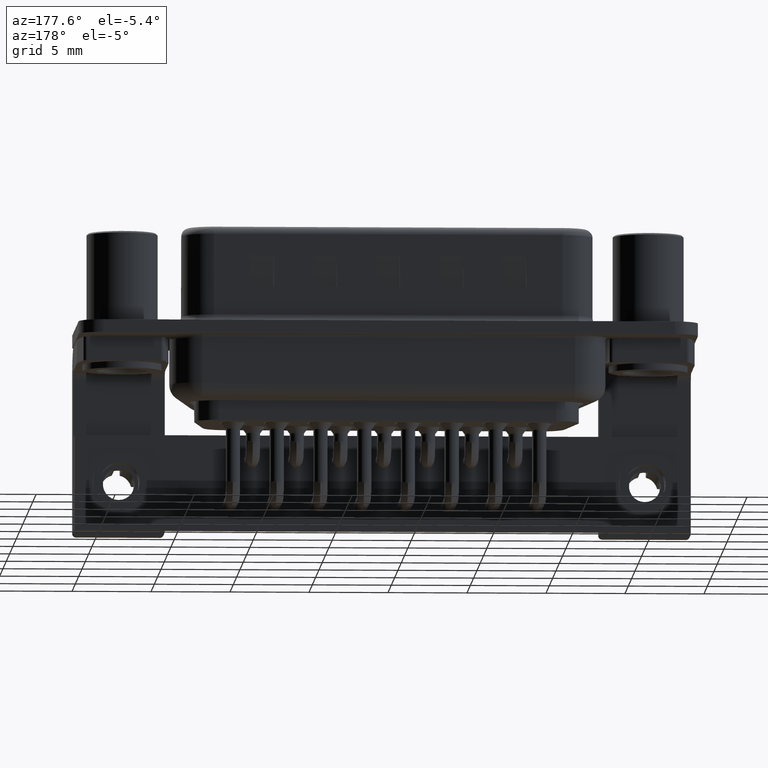
[diagram: clean part render]
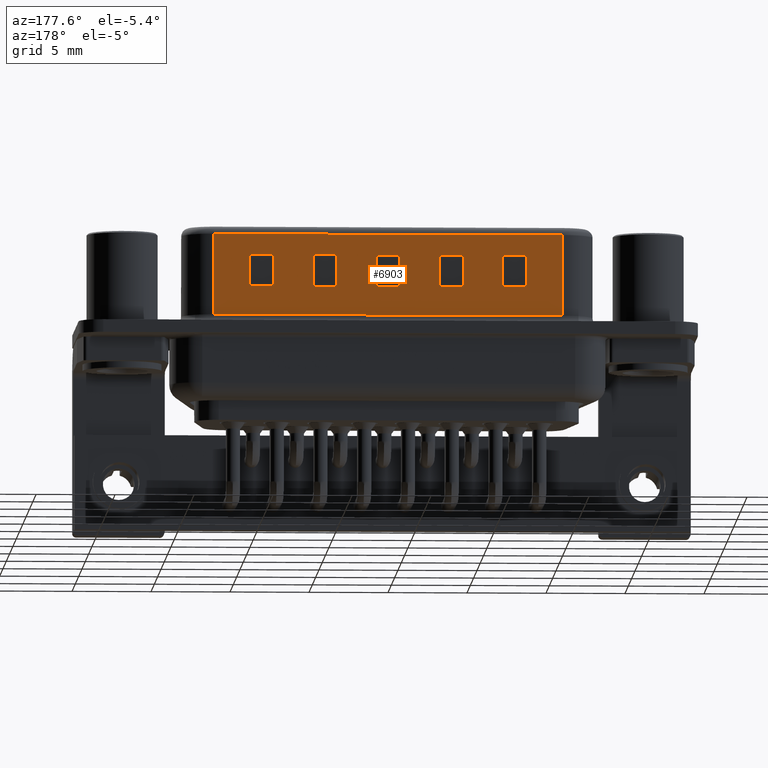
[diagram: same view with one face highlighted and labeled with its STEP entity id]
A machine part, auxiliary view. The second image highlights one B-rep face of the part: STEP entity #6903.
In plain terms, the highlighted planar face has unit normal (0, -1, 0).
Its self-contained STEP definition (entity closure, byte-faithful):
#479 = CARTESIAN_POINT ( 'NONE',  ( 15.89999999999999300, 4.549999999999994500, 4.704948974278316600 ) ) ;
#500 = VERTEX_POINT ( 'NONE', #22200 ) ;
#695 = FACE_BOUND ( 'NONE', #1959, .T. ) ;
#705 = LINE ( 'NONE', #23571, #11294 ) ;
#754 = CARTESIAN_POINT ( 'NONE',  ( 9.399999999999991500, 4.549999999999994500, 4.704948974278316600 ) ) ;
#837 = VERTEX_POINT ( 'NONE', #5879 ) ;
#983 = LINE ( 'NONE', #5433, #22508 ) ;
#1176 = CARTESIAN_POINT ( 'NONE',  ( 11.89999999999999300, 4.549999999999994500, 4.704948974278316600 ) ) ;
#1178 = CARTESIAN_POINT ( 'NONE',  ( 7.899999999999994100, 4.549999999999994500, 4.704948974278316600 ) ) ;
#1896 = DIRECTION ( 'NONE',  ( 1.000000000000000000, 0.0000000000000000000, 0.0000000000000000000 ) ) ;
#1959 = EDGE_LOOP ( 'NONE', ( #12987, #8311, #11628, #9436 ) ) ;
#1988 = DIRECTION ( 'NONE',  ( -0.0000000000000000000, -0.0000000000000000000, 1.000000000000000000 ) ) ;
#2022 = VERTEX_POINT ( 'NONE', #17949 ) ;
#2131 = PLANE ( 'NONE',  #17609 ) ;
#2170 = DIRECTION ( 'NONE',  ( 1.000000000000000000, 0.0000000000000000000, 0.0000000000000000000 ) ) ;
#2227 = ORIENTED_EDGE ( 'NONE', *, *, #26034, .F. ) ;
#2306 = EDGE_CURVE ( 'NONE', #10927, #2684, #19507, .T. ) ;
#2565 = CARTESIAN_POINT ( 'NONE',  ( 25.39999999999999100, 4.549999999999994500, 4.704948974278316600 ) ) ;
#2623 = VECTOR ( 'NONE', #26297, 1000.000000000000000 ) ;
#2631 = EDGE_LOOP ( 'NONE', ( #27019, #9250, #26051, #9356 ) ) ;
#2684 = VERTEX_POINT ( 'NONE', #26476 ) ;
#2874 = CARTESIAN_POINT ( 'NONE',  ( 13.39999999999999100, 4.549999999999994500, 2.704948974278317000 ) ) ;
#2962 = EDGE_LOOP ( 'NONE', ( #13669, #7652, #2227, #11561 ) ) ;
#2973 = VECTOR ( 'NONE', #2170, 1000.000000000000000 ) ;
#3158 = EDGE_CURVE ( 'NONE', #2022, #500, #12398, .T. ) ;
#3590 = EDGE_LOOP ( 'NONE', ( #18031, #26406, #9838, #3867 ) ) ;
#3867 = ORIENTED_EDGE ( 'NONE', *, *, #18675, .F. ) ;
#4049 = CARTESIAN_POINT ( 'NONE',  ( 21.39999999999999100, 4.549999999999994500, 4.704948974278316600 ) ) ;
#4241 = DIRECTION ( 'NONE',  ( 0.0000000000000000000, -1.000000000000000000, 0.0000000000000000000 ) ) ;
#4318 = ORIENTED_EDGE ( 'NONE', *, *, #21808, .F. ) ;
#4392 = EDGE_CURVE ( 'NONE', #6069, #10927, #23636, .T. ) ;
#4577 = EDGE_LOOP ( 'NONE', ( #7646, #7175, #4318, #23573 ) ) ;
#4746 = VERTEX_POINT ( 'NONE', #5125 ) ;
#4888 = DIRECTION ( 'NONE',  ( 1.000000000000000000, 0.0000000000000000000, 0.0000000000000000000 ) ) ;
#5099 = EDGE_CURVE ( 'NONE', #12417, #2022, #25970, .T. ) ;
#5125 = CARTESIAN_POINT ( 'NONE',  ( 19.89999999999999500, 4.549999999999994500, 4.704948974278316600 ) ) ;
#5290 = CARTESIAN_POINT ( 'NONE',  ( 21.39999999999999100, 4.549999999999994500, 4.704948974278316600 ) ) ;
#5433 = CARTESIAN_POINT ( 'NONE',  ( 5.624999999999994700, 4.549999999999994500, 6.520000000000000500 ) ) ;
#5495 = DIRECTION ( 'NONE',  ( -1.000000000000000000, -0.0000000000000000000, -0.0000000000000000000 ) ) ;
#5879 = CARTESIAN_POINT ( 'NONE',  ( 25.39999999999999100, 4.549999999999994500, 2.704948974278317000 ) ) ;
#6069 = VERTEX_POINT ( 'NONE', #22074 ) ;
#6107 = DIRECTION ( 'NONE',  ( -1.000000000000000000, -0.0000000000000000000, -0.0000000000000000000 ) ) ;
#6199 = DIRECTION ( 'NONE',  ( 0.0000000000000000000, 0.0000000000000000000, -1.000000000000000000 ) ) ;
#6422 = CARTESIAN_POINT ( 'NONE',  ( 23.89999999999999500, 4.549999999999994500, 2.704948974278317000 ) ) ;
#6462 = CARTESIAN_POINT ( 'NONE',  ( 15.89999999999999300, 4.549999999999994500, 2.704948974278317000 ) ) ;
#6903 = ADVANCED_FACE ( 'NONE', ( #22229, #695, #7043, #16692, #11276, #11932 ), #2131, .F. ) ;
#7006 = VERTEX_POINT ( 'NONE', #14787 ) ;
#7043 = FACE_BOUND ( 'NONE', #26854, .T. ) ;
#7128 = LINE ( 'NONE', #1176, #17422 ) ;
#7172 = LINE ( 'NONE', #17701, #12062 ) ;
#7175 = ORIENTED_EDGE ( 'NONE', *, *, #25329, .F. ) ;
#7324 = VECTOR ( 'NONE', #10921, 1000.000000000000000 ) ;
#7347 = EDGE_CURVE ( 'NONE', #16933, #23651, #13182, .T. ) ;
#7579 = DIRECTION ( 'NONE',  ( -1.000000000000000000, -0.0000000000000000000, -0.0000000000000000000 ) ) ;
#7646 = ORIENTED_EDGE ( 'NONE', *, *, #5099, .F. ) ;
#7650 = EDGE_CURVE ( 'NONE', #9977, #837, #16982, .T. ) ;
#7652 = ORIENTED_EDGE ( 'NONE', *, *, #7650, .F. ) ;
#7657 = CARTESIAN_POINT ( 'NONE',  ( 17.39999999999999100, 4.549999999999994500, 4.704948974278316600 ) ) ;
#7732 = ORIENTED_EDGE ( 'NONE', *, *, #2306, .F. ) ;
#8254 = VECTOR ( 'NONE', #22106, 1000.000000000000000 ) ;
#8311 = ORIENTED_EDGE ( 'NONE', *, *, #15935, .F. ) ;
#8421 = CARTESIAN_POINT ( 'NONE',  ( 23.89999999999999500, 4.549999999999994500, 4.704948974278316600 ) ) ;
#8530 = DIRECTION ( 'NONE',  ( -1.000000000000000000, -0.0000000000000000000, -0.0000000000000000000 ) ) ;
#8580 = CARTESIAN_POINT ( 'NONE',  ( 7.899999999999994100, 4.549999999999994500, 4.704948974278316600 ) ) ;
#8608 = EDGE_CURVE ( 'NONE', #14494, #7006, #24820, .T. ) ;
#8759 = CARTESIAN_POINT ( 'NONE',  ( 23.89999999999999500, 4.549999999999994500, 2.704948974278317000 ) ) ;
#9052 = EDGE_CURVE ( 'NONE', #2684, #14884, #21773, .T. ) ;
#9093 = VECTOR ( 'NONE', #13551, 1000.000000000000000 ) ;
#9163 = EDGE_CURVE ( 'NONE', #4746, #26359, #19147, .T. ) ;
#9250 = ORIENTED_EDGE ( 'NONE', *, *, #14311, .T. ) ;
#9356 = ORIENTED_EDGE ( 'NONE', *, *, #8608, .T. ) ;
#9436 = ORIENTED_EDGE ( 'NONE', *, *, #7347, .F. ) ;
#9567 = CARTESIAN_POINT ( 'NONE',  ( 19.89999999999999500, 4.549999999999994500, 2.704948974278317000 ) ) ;
#9838 = ORIENTED_EDGE ( 'NONE', *, *, #9163, .F. ) ;
#9977 = VERTEX_POINT ( 'NONE', #20267 ) ;
#10271 = VECTOR ( 'NONE', #6107, 1000.000000000000000 ) ;
#10343 = LINE ( 'NONE', #6422, #20600 ) ;
#10671 = VECTOR ( 'NONE', #23541, 1000.000000000000000 ) ;
#10921 = DIRECTION ( 'NONE',  ( 0.0000000000000000000, 0.0000000000000000000, -1.000000000000000000 ) ) ;
#10927 = VERTEX_POINT ( 'NONE', #11024 ) ;
#11024 = CARTESIAN_POINT ( 'NONE',  ( 7.899999999999994100, 4.549999999999994500, 4.704948974278316600 ) ) ;
#11276 = FACE_BOUND ( 'NONE', #4577, .T. ) ;
#11294 = VECTOR ( 'NONE', #4888, 1000.000000000000000 ) ;
#11561 = ORIENTED_EDGE ( 'NONE', *, *, #13330, .F. ) ;
#11628 = ORIENTED_EDGE ( 'NONE', *, *, #16003, .F. ) ;
#11744 = CARTESIAN_POINT ( 'NONE',  ( 19.89999999999999500, 4.549999999999994500, 4.704948974278316600 ) ) ;
#11748 = VECTOR ( 'NONE', #14141, 1000.000000000000000 ) ;
#11932 = FACE_OUTER_BOUND ( 'NONE', #2631, .T. ) ;
#12004 = LINE ( 'NONE', #7657, #17408 ) ;
#12008 = VECTOR ( 'NONE', #1988, 1000.000000000000000 ) ;
#12062 = VECTOR ( 'NONE', #21795, 1000.000000000000000 ) ;
#12114 = CARTESIAN_POINT ( 'NONE',  ( 11.89999999999999300, 4.549999999999994500, 4.704948974278316600 ) ) ;
#12307 = CARTESIAN_POINT ( 'NONE',  ( 27.67499999999999400, 4.549999999999993600, 0.8999999999999998000 ) ) ;
#12398 = LINE ( 'NONE', #479, #11748 ) ;
#12417 = VERTEX_POINT ( 'NONE', #25925 ) ;
#12448 = CARTESIAN_POINT ( 'NONE',  ( 5.624999999999994700, 4.549999999999994500, 6.020000000000001400 ) ) ;
#12502 = ORIENTED_EDGE ( 'NONE', *, *, #21314, .F. ) ;
#12740 = VECTOR ( 'NONE', #26885, 1000.000000000000000 ) ;
#12987 = ORIENTED_EDGE ( 'NONE', *, *, #22691, .F. ) ;
#13182 = LINE ( 'NONE', #12114, #23535 ) ;
#13323 = ORIENTED_EDGE ( 'NONE', *, *, #9052, .F. ) ;
#13330 = EDGE_CURVE ( 'NONE', #16331, #26433, #15595, .T. ) ;
#13551 = DIRECTION ( 'NONE',  ( 0.0000000000000000000, 0.0000000000000000000, -1.000000000000000000 ) ) ;
#13669 = ORIENTED_EDGE ( 'NONE', *, *, #16865, .F. ) ;
#13827 = VERTEX_POINT ( 'NONE', #14175 ) ;
#13921 = LINE ( 'NONE', #26068, #9093 ) ;
#13955 = CARTESIAN_POINT ( 'NONE',  ( 17.39999999999999100, 4.549999999999994500, 4.704948974278316600 ) ) ;
#14141 = DIRECTION ( 'NONE',  ( -0.0000000000000000000, -0.0000000000000000000, 1.000000000000000000 ) ) ;
#14175 = CARTESIAN_POINT ( 'NONE',  ( 13.39999999999999100, 4.549999999999994500, 4.704948974278316600 ) ) ;
#14311 = EDGE_CURVE ( 'NONE', #21039, #20037, #7172, .T. ) ;
#14494 = VERTEX_POINT ( 'NONE', #12307 ) ;
#14629 = CARTESIAN_POINT ( 'NONE',  ( 5.624999999999994700, 4.549999999999994500, 6.520000000000000500 ) ) ;
#14787 = CARTESIAN_POINT ( 'NONE',  ( 5.624999999999994700, 4.549999999999994500, 0.8999999999999998000 ) ) ;
#14884 = VERTEX_POINT ( 'NONE', #21886 ) ;
#15495 = EDGE_CURVE ( 'NONE', #23763, #18981, #18373, .T. ) ;
#15595 = LINE ( 'NONE', #8421, #26772 ) ;
#15626 = VECTOR ( 'NONE', #23758, 1000.000000000000000 ) ;
#15935 = EDGE_CURVE ( 'NONE', #13827, #24467, #13921, .T. ) ;
#16003 = EDGE_CURVE ( 'NONE', #23651, #13827, #7128, .T. ) ;
#16090 = LINE ( 'NONE', #17240, #10671 ) ;
#16331 = VERTEX_POINT ( 'NONE', #8759 ) ;
#16406 = VECTOR ( 'NONE', #6199, 1000.000000000000000 ) ;
#16692 = FACE_BOUND ( 'NONE', #3590, .T. ) ;
#16865 = EDGE_CURVE ( 'NONE', #837, #16331, #10343, .T. ) ;
#16878 = DIRECTION ( 'NONE',  ( -0.0000000000000000000, -0.0000000000000000000, -1.000000000000000000 ) ) ;
#16903 = EDGE_CURVE ( 'NONE', #20037, #14494, #25639, .T. ) ;
#16933 = VERTEX_POINT ( 'NONE', #18936 ) ;
#16982 = LINE ( 'NONE', #2565, #7324 ) ;
#17049 = LINE ( 'NONE', #4049, #16406 ) ;
#17240 = CARTESIAN_POINT ( 'NONE',  ( 7.899999999999994100, 4.549999999999994500, 2.704948974278317000 ) ) ;
#17408 = VECTOR ( 'NONE', #19972, 1000.000000000000000 ) ;
#17422 = VECTOR ( 'NONE', #24166, 1000.000000000000000 ) ;
#17609 = AXIS2_PLACEMENT_3D ( 'NONE', #14629, #4241, #18739 ) ;
#17701 = CARTESIAN_POINT ( 'NONE',  ( 5.624999999999994700, 4.549999999999994500, 6.020000000000001400 ) ) ;
#17851 = CARTESIAN_POINT ( 'NONE',  ( 21.39999999999999100, 4.549999999999994500, 2.704948974278317000 ) ) ;
#17949 = CARTESIAN_POINT ( 'NONE',  ( 15.89999999999999300, 4.549999999999994500, 2.704948974278317000 ) ) ;
#18031 = ORIENTED_EDGE ( 'NONE', *, *, #15495, .F. ) ;
#18336 = VECTOR ( 'NONE', #1896, 1000.000000000000000 ) ;
#18373 = LINE ( 'NONE', #19919, #22627 ) ;
#18675 = EDGE_CURVE ( 'NONE', #18981, #4746, #23738, .T. ) ;
#18739 = DIRECTION ( 'NONE',  ( 0.0000000000000000000, -0.0000000000000000000, -1.000000000000000000 ) ) ;
#18936 = CARTESIAN_POINT ( 'NONE',  ( 11.89999999999999300, 4.549999999999994500, 2.704948974278317000 ) ) ;
#18981 = VERTEX_POINT ( 'NONE', #9567 ) ;
#19147 = LINE ( 'NONE', #11744, #2623 ) ;
#19294 = VECTOR ( 'NONE', #16878, 1000.000000000000000 ) ;
#19448 = CARTESIAN_POINT ( 'NONE',  ( 27.67499999999999400, 4.549999999999993600, 6.020000000000001400 ) ) ;
#19507 = LINE ( 'NONE', #8580, #2973 ) ;
#19863 = DIRECTION ( 'NONE',  ( -0.0000000000000000000, -0.0000000000000000000, -1.000000000000000000 ) ) ;
#19919 = CARTESIAN_POINT ( 'NONE',  ( 19.89999999999999500, 4.549999999999994500, 2.704948974278317000 ) ) ;
#19972 = DIRECTION ( 'NONE',  ( 0.0000000000000000000, 0.0000000000000000000, -1.000000000000000000 ) ) ;
#19973 = CARTESIAN_POINT ( 'NONE',  ( 5.624999999999994700, 4.549999999999994500, 0.8999999999999998000 ) ) ;
#20037 = VERTEX_POINT ( 'NONE', #19448 ) ;
#20267 = CARTESIAN_POINT ( 'NONE',  ( 25.39999999999999100, 4.549999999999994500, 4.704948974278316600 ) ) ;
#20524 = CARTESIAN_POINT ( 'NONE',  ( 11.89999999999999300, 4.549999999999994500, 2.704948974278317000 ) ) ;
#20600 = VECTOR ( 'NONE', #8530, 1000.000000000000000 ) ;
#20940 = VECTOR ( 'NONE', #7579, 1000.000000000000000 ) ;
#21039 = VERTEX_POINT ( 'NONE', #12448 ) ;
#21314 = EDGE_CURVE ( 'NONE', #14884, #6069, #16090, .T. ) ;
#21537 = EDGE_CURVE ( 'NONE', #26359, #23763, #17049, .T. ) ;
#21773 = LINE ( 'NONE', #754, #15626 ) ;
#21795 = DIRECTION ( 'NONE',  ( 1.000000000000000000, -0.0000000000000000000, -0.0000000000000000000 ) ) ;
#21808 = EDGE_CURVE ( 'NONE', #500, #25280, #705, .T. ) ;
#21886 = CARTESIAN_POINT ( 'NONE',  ( 9.399999999999991500, 4.549999999999994500, 2.704948974278317000 ) ) ;
#22074 = CARTESIAN_POINT ( 'NONE',  ( 7.899999999999994100, 4.549999999999994500, 2.704948974278317000 ) ) ;
#22106 = DIRECTION ( 'NONE',  ( -1.000000000000000000, 0.0000000000000000000, 0.0000000000000000000 ) ) ;
#22200 = CARTESIAN_POINT ( 'NONE',  ( 15.89999999999999300, 4.549999999999994500, 4.704948974278316600 ) ) ;
#22229 = FACE_BOUND ( 'NONE', #2962, .T. ) ;
#22382 = DIRECTION ( 'NONE',  ( -0.0000000000000000000, -0.0000000000000000000, 1.000000000000000000 ) ) ;
#22508 = VECTOR ( 'NONE', #19863, 1000.000000000000000 ) ;
#22627 = VECTOR ( 'NONE', #5495, 1000.000000000000000 ) ;
#22691 = EDGE_CURVE ( 'NONE', #24467, #16933, #26894, .T. ) ;
#22861 = DIRECTION ( 'NONE',  ( -0.0000000000000000000, -0.0000000000000000000, 1.000000000000000000 ) ) ;
#23071 = CARTESIAN_POINT ( 'NONE',  ( 27.67499999999999400, 4.549999999999993600, 6.520000000000000500 ) ) ;
#23104 = EDGE_CURVE ( 'NONE', #21039, #7006, #983, .T. ) ;
#23535 = VECTOR ( 'NONE', #22382, 1000.000000000000000 ) ;
#23541 = DIRECTION ( 'NONE',  ( -1.000000000000000000, -0.0000000000000000000, -0.0000000000000000000 ) ) ;
#23571 = CARTESIAN_POINT ( 'NONE',  ( 15.89999999999999300, 4.549999999999994500, 4.704948974278316600 ) ) ;
#23573 = ORIENTED_EDGE ( 'NONE', *, *, #3158, .F. ) ;
#23623 = ORIENTED_EDGE ( 'NONE', *, *, #4392, .F. ) ;
#23636 = LINE ( 'NONE', #1178, #12008 ) ;
#23638 = CARTESIAN_POINT ( 'NONE',  ( 11.89999999999999300, 4.549999999999994500, 4.704948974278316600 ) ) ;
#23651 = VERTEX_POINT ( 'NONE', #23638 ) ;
#23738 = LINE ( 'NONE', #24749, #12740 ) ;
#23758 = DIRECTION ( 'NONE',  ( 0.0000000000000000000, 0.0000000000000000000, -1.000000000000000000 ) ) ;
#23763 = VERTEX_POINT ( 'NONE', #17851 ) ;
#24166 = DIRECTION ( 'NONE',  ( 1.000000000000000000, 0.0000000000000000000, 0.0000000000000000000 ) ) ;
#24467 = VERTEX_POINT ( 'NONE', #2874 ) ;
#24615 = LINE ( 'NONE', #26930, #18336 ) ;
#24749 = CARTESIAN_POINT ( 'NONE',  ( 19.89999999999999500, 4.549999999999994500, 4.704948974278316600 ) ) ;
#24820 = LINE ( 'NONE', #19973, #8254 ) ;
#25280 = VERTEX_POINT ( 'NONE', #13955 ) ;
#25329 = EDGE_CURVE ( 'NONE', #25280, #12417, #12004, .T. ) ;
#25639 = LINE ( 'NONE', #23071, #19294 ) ;
#25925 = CARTESIAN_POINT ( 'NONE',  ( 17.39999999999999100, 4.549999999999994500, 2.704948974278317000 ) ) ;
#25970 = LINE ( 'NONE', #6462, #20940 ) ;
#26034 = EDGE_CURVE ( 'NONE', #26433, #9977, #24615, .T. ) ;
#26051 = ORIENTED_EDGE ( 'NONE', *, *, #16903, .T. ) ;
#26068 = CARTESIAN_POINT ( 'NONE',  ( 13.39999999999999100, 4.549999999999994500, 4.704948974278316600 ) ) ;
#26297 = DIRECTION ( 'NONE',  ( 1.000000000000000000, 0.0000000000000000000, 0.0000000000000000000 ) ) ;
#26359 = VERTEX_POINT ( 'NONE', #5290 ) ;
#26406 = ORIENTED_EDGE ( 'NONE', *, *, #21537, .F. ) ;
#26433 = VERTEX_POINT ( 'NONE', #26437 ) ;
#26437 = CARTESIAN_POINT ( 'NONE',  ( 23.89999999999999500, 4.549999999999994500, 4.704948974278316600 ) ) ;
#26476 = CARTESIAN_POINT ( 'NONE',  ( 9.399999999999991500, 4.549999999999994500, 4.704948974278316600 ) ) ;
#26772 = VECTOR ( 'NONE', #22861, 1000.000000000000000 ) ;
#26854 = EDGE_LOOP ( 'NONE', ( #12502, #13323, #7732, #23623 ) ) ;
#26885 = DIRECTION ( 'NONE',  ( -0.0000000000000000000, -0.0000000000000000000, 1.000000000000000000 ) ) ;
#26894 = LINE ( 'NONE', #20524, #10271 ) ;
#26930 = CARTESIAN_POINT ( 'NONE',  ( 23.89999999999999500, 4.549999999999994500, 4.704948974278316600 ) ) ;
#27019 = ORIENTED_EDGE ( 'NONE', *, *, #23104, .F. ) ;